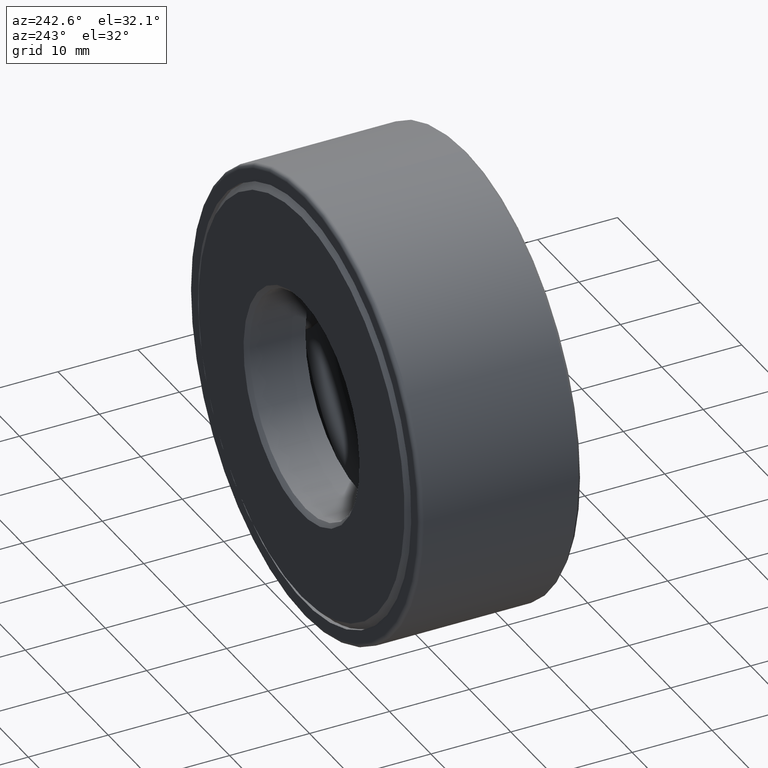
[diagram: clean part render]
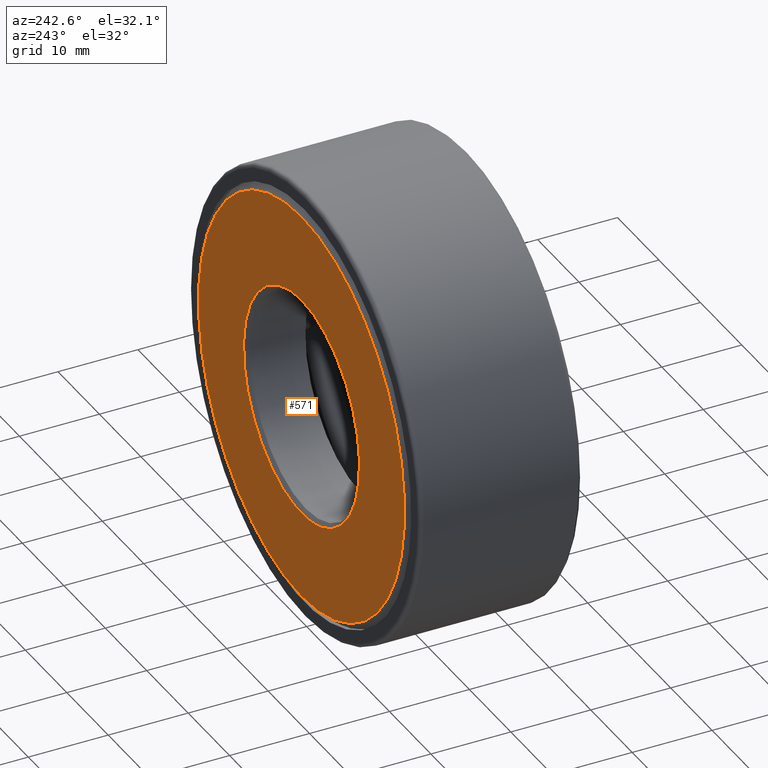
[diagram: same view with one face highlighted and labeled with its STEP entity id]
A machine part, auxiliary view. The second image highlights one B-rep face of the part: STEP entity #571.
In plain terms, the highlighted planar face has unit normal (-0, 1, 0).
Its self-contained STEP definition (entity closure, byte-faithful):
#41 = VERTEX_POINT ( 'NONE', #258 ) ;
#120 = DIRECTION ( 'NONE',  ( 0.0000000000000000000, 0.0000000000000000000, 1.000000000000000000 ) ) ;
#121 = DIRECTION ( 'NONE',  ( 0.0000000000000000000, 0.0000000000000000000, 1.000000000000000000 ) ) ;
#122 = VERTEX_POINT ( 'NONE', #470 ) ;
#130 = DIRECTION ( 'NONE',  ( -0.0000000000000000000, 1.000000000000000000, 0.0000000000000000000 ) ) ;
#158 = ORIENTED_EDGE ( 'NONE', *, *, #390, .T. ) ;
#161 = CIRCLE ( 'NONE', #178, 0.9787499999999997900 ) ;
#172 = ORIENTED_EDGE ( 'NONE', *, *, #283, .F. ) ;
#178 = AXIS2_PLACEMENT_3D ( 'NONE', #548, #231, #121 ) ;
#182 = FACE_BOUND ( 'NONE', #493, .T. ) ;
#213 = CARTESIAN_POINT ( 'NONE',  ( 0.0000000000000000000, 0.8125000000000001100, 0.0000000000000000000 ) ) ;
#231 = DIRECTION ( 'NONE',  ( -0.0000000000000000000, 1.000000000000000000, -0.0000000000000000000 ) ) ;
#242 = DIRECTION ( 'NONE',  ( 0.0000000000000000000, 0.0000000000000000000, 1.000000000000000000 ) ) ;
#258 = CARTESIAN_POINT ( 'NONE',  ( 0.0000000000000000000, 0.8125000000000001100, 0.9787499999999997900 ) ) ;
#283 = EDGE_CURVE ( 'NONE', #122, #122, #569, .T. ) ;
#287 = AXIS2_PLACEMENT_3D ( 'NONE', #515, #130, #242 ) ;
#318 = DIRECTION ( 'NONE',  ( -0.0000000000000000000, 1.000000000000000000, -0.0000000000000000000 ) ) ;
#390 = EDGE_CURVE ( 'NONE', #41, #41, #161, .T. ) ;
#420 = FACE_OUTER_BOUND ( 'NONE', #543, .T. ) ;
#460 = AXIS2_PLACEMENT_3D ( 'NONE', #213, #318, #120 ) ;
#470 = CARTESIAN_POINT ( 'NONE',  ( 0.0000000000000000000, 0.8125000000000001100, 0.5512500000000001300 ) ) ;
#493 = EDGE_LOOP ( 'NONE', ( #172 ) ) ;
#510 = PLANE ( 'NONE',  #287 ) ;
#515 = CARTESIAN_POINT ( 'NONE',  ( 0.0000000000000000000, 0.8125000000000001100, 0.0000000000000000000 ) ) ;
#543 = EDGE_LOOP ( 'NONE', ( #158 ) ) ;
#548 = CARTESIAN_POINT ( 'NONE',  ( 0.0000000000000000000, 0.8125000000000001100, 0.0000000000000000000 ) ) ;
#569 = CIRCLE ( 'NONE', #460, 0.5512500000000001300 ) ;
#571 = ADVANCED_FACE ( 'NONE', ( #420, #182 ), #510, .T. ) ;